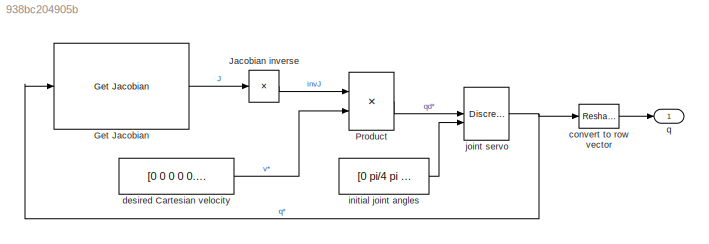
MODEL slx_938bc204905b
KIND model
CONFIG AbsTol = auto
CONFIG EnableMultiTasking = on
CONFIG FixedStep = auto
CONFIG InitFcn = % Load PUMA robot, so it's available for Jacobian\nif ~exist("puma","var")\n   puma = loadrvcrobot("puma");\nend
CONFIG MaxStep = auto
CONFIG MinStep = auto
CONFIG PreLoadFcn = % Load PUMA robot, so it's available for Jacobian\nif ~exist("puma","var")\n   puma = loadrvcrobot("puma");\nend
CONFIG RelTol = 1e-3
CONFIG SampleTimeConstraint = Unconstrained
CONFIG SolverName = ode45
CONFIG StartTime = 0.0
CONFIG StopTime = 5.0
BLOCK [Reference] Get Jacobian  REF=robotmaniplib/Get Jacobian
  SourceBlock = robotmaniplib/Get Jacobian
  SourceType = Get Jacobian
BLOCK [Product] Jacobian inverse
  Inputs = /
  Multiplication = Matrix(*)
BLOCK [Product] Product
  Multiplication = Matrix(*)
  OutDataTypeStr = Inherit: Same as first input
  SaturateOnIntegerOverflow = on
BLOCK [Reshape] convert to row vector
  OutputDimensionality = Customize
  OutputDimensions = 6
BLOCK [Constant] desired Cartesian velocity
  Value = [0 0 0 0 0.05 0]'
  VectorParams1D = off
BLOCK [Constant] initial joint angles
  Value = [0 pi/4 pi  0 pi/4 0]'
  VectorParams1D = off
BLOCK [DiscreteIntegrator] joint servo
  ICPrevOutput = DiscIntNeverNeededParam
  ICPrevScaledInput = DiscIntNeverNeededParam
  InitialCondition = [0 pi/4 pi 0 pi/4 0]'
  InitialConditionSetting = Auto
  InitialConditionSource = external
  SampleTime = 0.05
BLOCK [Outport] q
  SignalName = q
LINE Get Jacobian:1 -> Jacobian inverse:1
LINE Jacobian inverse:1 -> Product:1
LINE Product:1 -> joint servo:1
LINE convert to row vector:1 -> q:1
LINE desired Cartesian velocity:1 -> Product:2
LINE initial joint angles:1 -> joint servo:2
NET joint servo:1 -> Get Jacobian:1, convert to row vector:1
note: NET lines group one-source signal fan-out (src -> all destinations, sorted); 1:1 wires keep LINE
